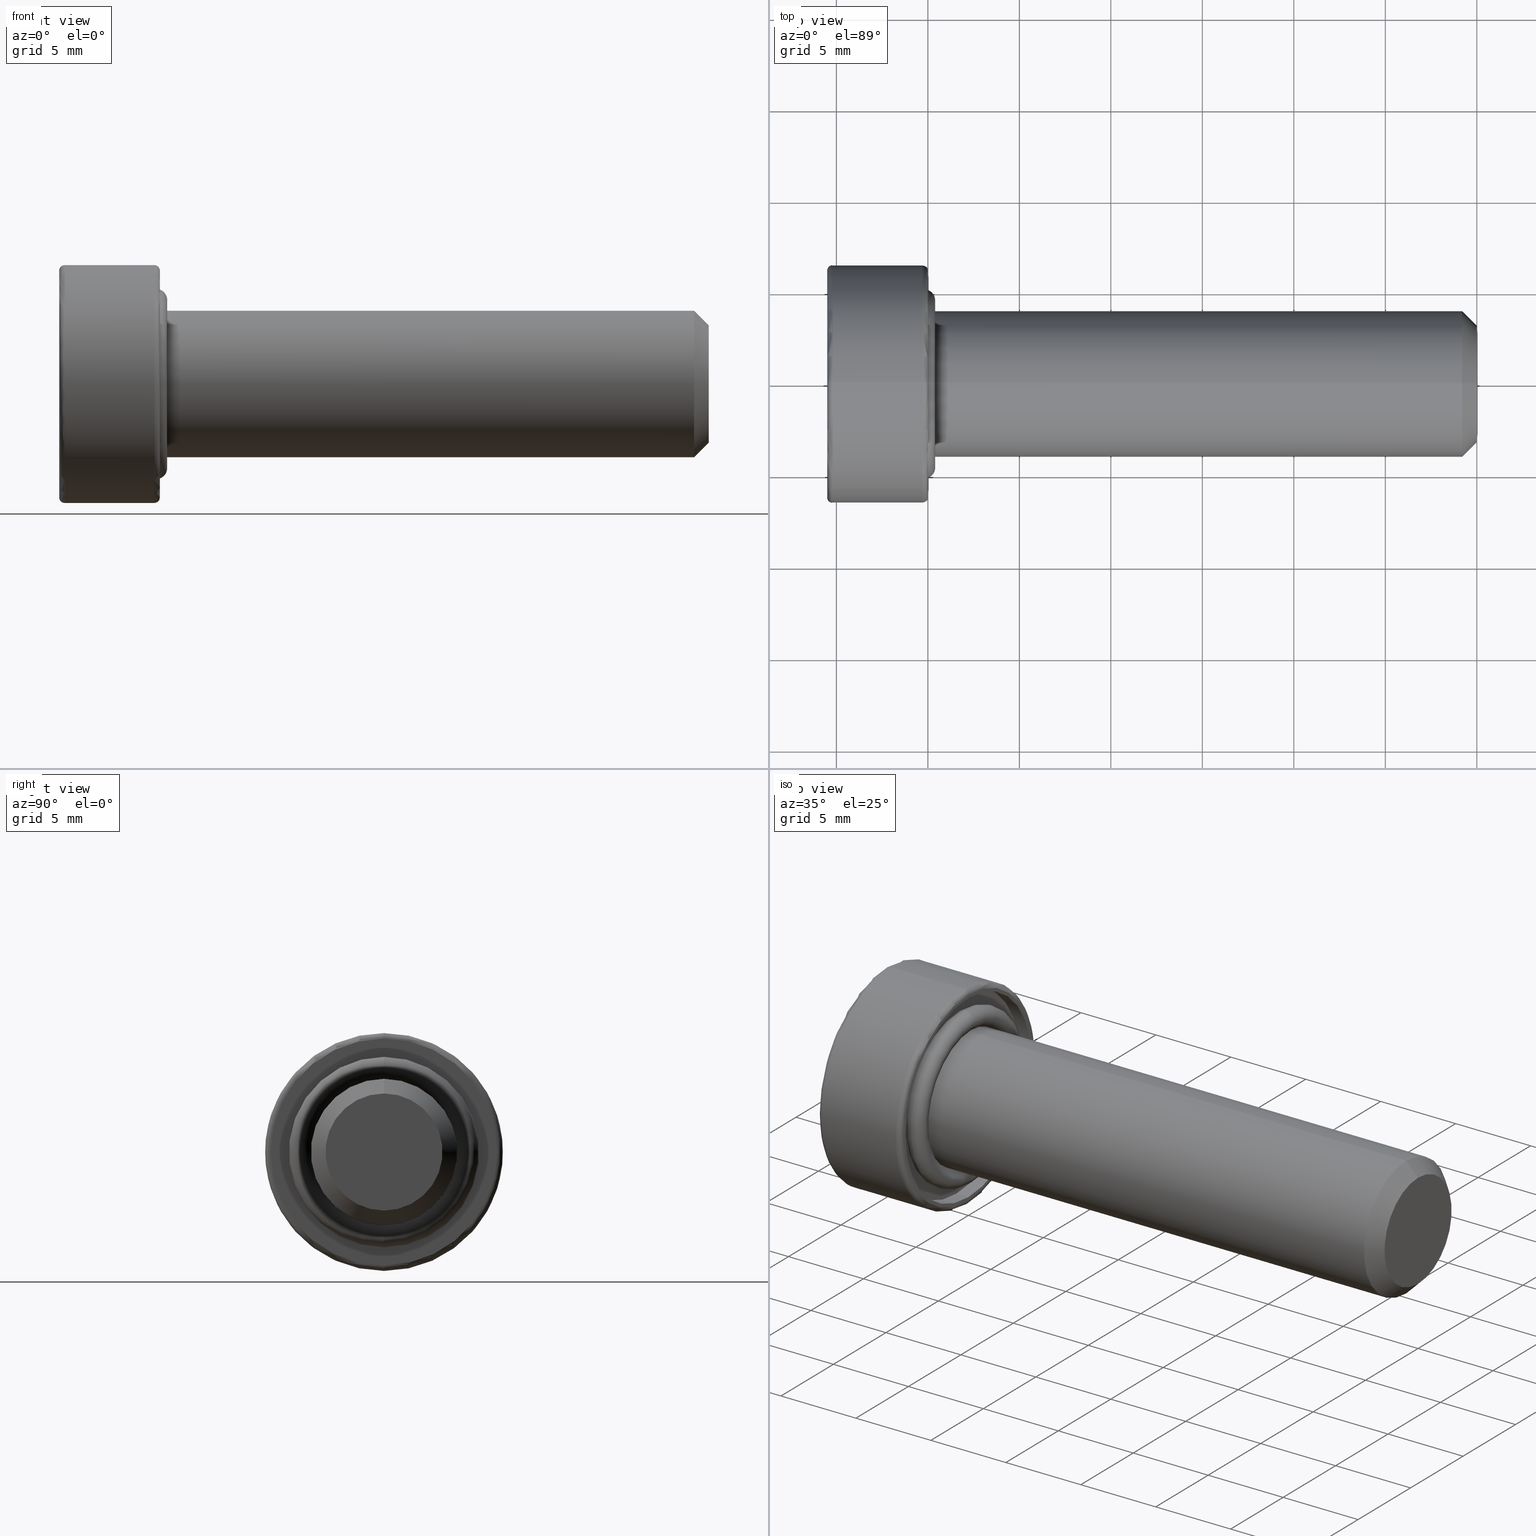
[diagram: canonical four-view strip — front | top / right | iso, engineering-drawing reading convention]
A machine part, canonical four-view strip (front | top / right | iso — engineering-drawing reading convention). The complete STEP part file that produces these views, byte-faithful:
ISO-10303-21;
HEADER;
FILE_DESCRIPTION (( 'STEP AP214' ),
    '1' );
FILE_NAME ('TL_418_M8_30.STEP',
    '2016-01-25T00:31:14',
    ( '' ),
    ( '' ),
    'SwSTEP 2.0',
    'SolidWorks 2015',
    '' );
FILE_SCHEMA (( 'AUTOMOTIVE_DESIGN' ));
ENDSEC;

DATA;
#1 = CARTESIAN_POINT ( 'NONE',  ( 0.0000000000000000000, 7.776507174585691200E-016, 6.199999999999999300 ) ) ;
#2 = ORIENTED_EDGE ( 'NONE', *, *, #412, .T. ) ;
#3 = ORIENTED_EDGE ( 'NONE', *, *, #284, .T. ) ;
#4 = DIRECTION ( 'NONE',  ( 0.0000000000000000000, 0.0000000000000000000, -1.000000000000000000 ) ) ;
#5 = CARTESIAN_POINT ( 'NONE',  ( -0.1999999999999999800, 5.633375276077824100E-016, 4.599999999999999600 ) ) ;
#6 = LINE ( 'NONE', #757, #656 ) ;
#7 = CYLINDRICAL_SURFACE ( 'NONE', #794, 6.499999999999999100 ) ;
#8 = EDGE_CURVE ( 'NONE', #211, #224, #171, .T. ) ;
#9 = DIRECTION ( 'NONE',  ( 0.0000000000000000000, 0.0000000000000000000, -1.000000000000000000 ) ) ;
#10 = DIRECTION ( 'NONE',  ( 0.0000000000000000000, 0.0000000000000000000, -1.000000000000000000 ) ) ;
#11 = ORIENTED_EDGE ( 'NONE', *, *, #469, .T. ) ;
#12 = CIRCLE ( 'NONE', #425, 4.000000000000000000 ) ;
#13 = DIRECTION ( 'NONE',  ( -1.000000000000000000, -0.0000000000000000000, -0.0000000000000000000 ) ) ;
#14 = CIRCLE ( 'NONE', #543, 3.199999999999998000 ) ;
#15 = DIRECTION ( 'NONE',  ( 1.000000000000000000, 0.0000000000000000000, 0.0000000000000000000 ) ) ;
#16 = ORIENTED_EDGE ( 'NONE', *, *, #770, .T. ) ;
#17 = VERTEX_POINT ( 'NONE', #584 ) ;
#18 = EDGE_CURVE ( 'NONE', #40, #709, #90, .T. ) ;
#19 =( NAMED_UNIT ( * ) SI_UNIT ( $, .STERADIAN. ) SOLID_ANGLE_UNIT ( ) );
#20 = DIRECTION ( 'NONE',  ( -1.000000000000000000, -0.0000000000000000000, -0.0000000000000000000 ) ) ;
#21 = CIRCLE ( 'NONE', #448, 0.2999999999999999300 ) ;
#22 = ADVANCED_FACE ( 'NONE', ( #407 ), #247, .T. ) ;
#23 = ORIENTED_EDGE ( 'NONE', *, *, #220, .T. ) ;
#24 = AXIS2_PLACEMENT_3D ( 'NONE', #590, #722, #404 ) ;
#25 = MECHANICAL_DESIGN_GEOMETRIC_PRESENTATION_REPRESENTATION (  '', ( #753 ), #77 ) ;
#26 = AXIS2_PLACEMENT_3D ( 'NONE', #377, #282, #163 ) ;
#27 = ORIENTED_EDGE ( 'NONE', *, *, #800, .T. ) ;
#28 = DIRECTION ( 'NONE',  ( 0.0000000000000000000, 0.0000000000000000000, 1.000000000000000000 ) ) ;
#29 = ORIENTED_EDGE ( 'NONE', *, *, #520, .T. ) ;
#30 = CIRCLE ( 'NONE', #730, 4.000000000000000000 ) ;
#31 = EDGE_CURVE ( 'NONE', #40, #711, #399, .T. ) ;
#32 = CARTESIAN_POINT ( 'NONE',  ( 30.00000000000000000, 0.0000000000000000000, 0.0000000000000000000 ) ) ;
#33 = FILL_AREA_STYLE_COLOUR ( '', #157 ) ;
#34 = CIRCLE ( 'NONE', #432, 6.499999999999999100 ) ;
#35 = CIRCLE ( 'NONE', #755, 0.5999999999999998700 ) ;
#36 = SURFACE_STYLE_USAGE ( .BOTH. , #176 ) ;
#37 = CARTESIAN_POINT ( 'NONE',  ( 30.00000000000000000, 0.0000000000000000000, 0.0000000000000000000 ) ) ;
#38 =( LENGTH_UNIT ( ) NAMED_UNIT ( * ) SI_UNIT ( .MILLI., .METRE. ) );
#39 = FACE_OUTER_BOUND ( 'NONE', #474, .T. ) ;
#40 = VERTEX_POINT ( 'NONE', #231 ) ;
#41 = PRODUCT_DEFINITION_CONTEXT ( 'detailed design', #403, 'design' ) ;
#42 =( NAMED_UNIT ( * ) PLANE_ANGLE_UNIT ( ) SI_UNIT ( $, .RADIAN. ) );
#43 = EDGE_CURVE ( 'NONE', #256, #718, #80, .T. ) ;
#44 = AXIS2_PLACEMENT_3D ( 'NONE', #458, #88, #518 ) ;
#45 = ORIENTED_EDGE ( 'NONE', *, *, #18, .F. ) ;
#46 = FACE_OUTER_BOUND ( 'NONE', #536, .T. ) ;
#47 = VECTOR ( 'NONE', #586, 1000.000000000000000 ) ;
#48 = CARTESIAN_POINT ( 'NONE',  ( 0.0000000000000000000, 0.0000000000000000000, 0.0000000000000000000 ) ) ;
#49 = VECTOR ( 'NONE', #491, 1000.000000000000000 ) ;
#50 = FACE_OUTER_BOUND ( 'NONE', #266, .T. ) ;
#51 = DIRECTION ( 'NONE',  ( -0.0000000000000000000, 0.5000000000000004400, 0.8660254037844382600 ) ) ;
#52 = AXIS2_PLACEMENT_3D ( 'NONE', #392, #249, #273 ) ;
#53 = ADVANCED_FACE ( 'NONE', ( #580 ), #684, .T. ) ;
#54 = CIRCLE ( 'NONE', #393, 0.5999999999999998700 ) ;
#55 = CIRCLE ( 'NONE', #545, 6.000000000000000900 ) ;
#56 = PLANE ( 'NONE',  #101 ) ;
#57 = DIRECTION ( 'NONE',  ( 0.0000000000000000000, 1.224646799147353200E-016, 1.000000000000000000 ) ) ;
#58 = ORIENTED_EDGE ( 'NONE', *, *, #469, .F. ) ;
#59 = EDGE_LOOP ( 'NONE', ( #762, #788, #696, #3 ) ) ;
#60 = EDGE_LOOP ( 'NONE', ( #443, #780, #370, #581 ) ) ;
#61 = EDGE_CURVE ( 'NONE', #803, #601, #14, .T. ) ;
#62 = FACE_OUTER_BOUND ( 'NONE', #778, .T. ) ;
#63 = ORIENTED_EDGE ( 'NONE', *, *, #291, .F. ) ;
#64 = CIRCLE ( 'NONE', #521, 0.2999999999999999300 ) ;
#65 = EDGE_LOOP ( 'NONE', ( #236, #465 ) ) ;
#66 = CARTESIAN_POINT ( 'NONE',  ( 0.0000000000000000000, 0.0000000000000000000, 0.0000000000000000000 ) ) ;
#67 = CARTESIAN_POINT ( 'NONE',  ( 0.0000000000000000000, 0.0000000000000000000, 0.0000000000000000000 ) ) ;
#68 = ADVANCED_FACE ( 'NONE', ( #765 ), #539, .T. ) ;
#69 = FILL_AREA_STYLE_COLOUR ( '', #731 ) ;
#70 = DIRECTION ( 'NONE',  ( 1.000000000000000000, -0.0000000000000000000, 0.0000000000000000000 ) ) ;
#71 =( NAMED_UNIT ( * ) SI_UNIT ( $, .STERADIAN. ) SOLID_ANGLE_UNIT ( ) );
#72 = ADVANCED_FACE ( 'NONE', ( #774, #569 ), #417, .T. ) ;
#73 = ORIENTED_EDGE ( 'NONE', *, *, #8, .F. ) ;
#74 = ADVANCED_FACE ( 'NONE', ( #726 ), #662, .F. ) ;
#75 = CARTESIAN_POINT ( 'NONE',  ( 30.00000000000000000, 0.0000000000000000000, 0.0000000000000000000 ) ) ;
#76 = ADVANCED_FACE ( 'NONE', ( #645 ), #324, .T. ) ;
#77 =( GEOMETRIC_REPRESENTATION_CONTEXT ( 3 ) GLOBAL_UNCERTAINTY_ASSIGNED_CONTEXT ( ( #796 ) ) GLOBAL_UNIT_ASSIGNED_CONTEXT ( ( #99, #690, #71 ) ) REPRESENTATION_CONTEXT ( 'NONE', 'WORKASPACE' ) );
#78 = ORIENTED_EDGE ( 'NONE', *, *, #18, .T. ) ;
#79 = CARTESIAN_POINT ( 'NONE',  ( -0.2000000000000000700, 0.0000000000000000000, 0.0000000000000000000 ) ) ;
#80 = CIRCLE ( 'NONE', #423, 0.2999999999999999300 ) ;
#81 = CARTESIAN_POINT ( 'NONE',  ( -2.499999999999999600, 1.443375672974074100, 2.500000000000013300 ) ) ;
#82 = EDGE_CURVE ( 'NONE', #149, #17, #695, .T. ) ;
#83 = VECTOR ( 'NONE', #340, 1000.000000000000000 ) ;
#84 = ADVANCED_FACE ( 'NONE', ( #736 ), #294, .F. ) ;
#85 = DIRECTION ( 'NONE',  ( 0.0000000000000000000, 1.000000000000000000, -1.224646799147353200E-016 ) ) ;
#86 = ORIENTED_EDGE ( 'NONE', *, *, #291, .T. ) ;
#87 = CIRCLE ( 'NONE', #44, 6.199999999999999300 ) ;
#88 = DIRECTION ( 'NONE',  ( -1.000000000000000000, -0.0000000000000000000, -0.0000000000000000000 ) ) ;
#89 =( NAMED_UNIT ( * ) PLANE_ANGLE_UNIT ( ) SI_UNIT ( $, .RADIAN. ) );
#90 = CIRCLE ( 'NONE', #376, 6.499999999999999100 ) ;
#91 = VERTEX_POINT ( 'NONE', #413 ) ;
#92 = DIRECTION ( 'NONE',  ( 1.000000000000000000, -0.0000000000000000000, -0.0000000000000000000 ) ) ;
#93 = SURFACE_STYLE_USAGE ( .BOTH. , #687 ) ;
#94 = PRESENTATION_STYLE_ASSIGNMENT (( #36 ) ) ;
#95 = EDGE_CURVE ( 'NONE', #601, #803, #206, .T. ) ;
#96 = AXIS2_PLACEMENT_3D ( 'NONE', #630, #194, #761 ) ;
#97 = VERTEX_POINT ( 'NONE', #227 ) ;
#98 = ORIENTED_EDGE ( 'NONE', *, *, #31, .T. ) ;
#99 =( LENGTH_UNIT ( ) NAMED_UNIT ( * ) SI_UNIT ( .MILLI., .METRE. ) );
#100 = ADVANCED_FACE ( 'NONE', ( #127 ), #148, .T. ) ;
#101 = AXIS2_PLACEMENT_3D ( 'NONE', #125, #70, #614 ) ;
#102 = DIRECTION ( 'NONE',  ( 0.0000000000000000000, 0.0000000000000000000, -1.000000000000000000 ) ) ;
#103 = CONICAL_SURFACE ( 'NONE', #599, 3.199999999999998000, 0.7853981633974503900 ) ;
#104 = EDGE_CURVE ( 'NONE', #345, #486, #356, .T. ) ;
#105 = DIRECTION ( 'NONE',  ( 1.000000000000000000, -0.0000000000000000000, -0.0000000000000000000 ) ) ;
#106 = PRESENTATION_STYLE_ASSIGNMENT (( #93 ) ) ;
#107 = VECTOR ( 'NONE', #303, 1000.000000000000100 ) ;
#108 = DIRECTION ( 'NONE',  ( 0.0000000000000000000, 0.0000000000000000000, -1.000000000000000000 ) ) ;
#109 = EDGE_LOOP ( 'NONE', ( #508, #776, #490, #367 ) ) ;
#110 = EDGE_LOOP ( 'NONE', ( #63, #433 ) ) ;
#111 = DIRECTION ( 'NONE',  ( 1.000000000000000000, 0.0000000000000000000, 0.0000000000000000000 ) ) ;
#112 = LINE ( 'NONE', #387, #192 ) ;
#113 = VERTEX_POINT ( 'NONE', #279 ) ;
#114 = DIRECTION ( 'NONE',  ( 0.0000000000000000000, 1.224646799147353200E-016, 1.000000000000000000 ) ) ;
#115 = CARTESIAN_POINT ( 'NONE',  ( -0.1999999999999999800, 0.0000000000000000000, 0.0000000000000000000 ) ) ;
#116 = AXIS2_PLACEMENT_3D ( 'NONE', #686, #365, #738 ) ;
#117 =( NAMED_UNIT ( * ) SI_UNIT ( $, .STERADIAN. ) SOLID_ANGLE_UNIT ( ) );
#118 = CARTESIAN_POINT ( 'NONE',  ( -0.1999999999999999800, 0.0000000000000000000, -4.599999999999999600 ) ) ;
#119 = FACE_OUTER_BOUND ( 'NONE', #59, .T. ) ;
#120 = EDGE_CURVE ( 'NONE', #344, #113, #155, .T. ) ;
#121 = CARTESIAN_POINT ( 'NONE',  ( -2.499999999999999600, -1.443375672974071000, 2.500000000000013300 ) ) ;
#122 = ORIENTED_EDGE ( 'NONE', *, *, #82, .F. ) ;
#123 = ORIENTED_EDGE ( 'NONE', *, *, #719, .T. ) ;
#124 = DIRECTION ( 'NONE',  ( 1.000000000000000000, -0.0000000000000000000, -0.0000000000000000000 ) ) ;
#125 = CARTESIAN_POINT ( 'NONE',  ( -2.499999999999999600, 0.0000000000000000000, 0.0000000000000000000 ) ) ;
#126 = LINE ( 'NONE', #139, #335 ) ;
#127 = FACE_OUTER_BOUND ( 'NONE', #651, .T. ) ;
#128 = CARTESIAN_POINT ( 'NONE',  ( -0.8000000000000000400, 0.0000000000000000000, 0.0000000000000000000 ) ) ;
#129 = DIRECTION ( 'NONE',  ( 1.000000000000000000, 0.0000000000000000000, 0.0000000000000000000 ) ) ;
#130 = FACE_OUTER_BOUND ( 'NONE', #453, .T. ) ;
#131 = ADVANCED_FACE ( 'NONE', ( #184, #408 ), #606, .T. ) ;
#132 = EDGE_CURVE ( 'NONE', #441, #649, #112, .T. ) ;
#133 = VERTEX_POINT ( 'NONE', #1 ) ;
#134 = CARTESIAN_POINT ( 'NONE',  ( 0.0000000000000000000, 0.0000000000000000000, 0.0000000000000000000 ) ) ;
#135 = ORIENTED_EDGE ( 'NONE', *, *, #284, .F. ) ;
#136 = EDGE_LOOP ( 'NONE', ( #313, #450, #650, #676 ) ) ;
#137 = CARTESIAN_POINT ( 'NONE',  ( -5.500000000000000000, 0.0000000000000000000, 0.0000000000000000000 ) ) ;
#138 = ORIENTED_EDGE ( 'NONE', *, *, #8, .T. ) ;
#139 = CARTESIAN_POINT ( 'NONE',  ( -0.8000000000000000400, 7.347880794884120700E-016, 6.000000000000000900 ) ) ;
#140 = DIRECTION ( 'NONE',  ( 0.0000000000000000000, 0.0000000000000000000, -1.000000000000000000 ) ) ;
#141 = DIRECTION ( 'NONE',  ( 0.0000000000000000000, 0.0000000000000000000, 1.000000000000000000 ) ) ;
#142 = DIRECTION ( 'NONE',  ( 1.000000000000000000, 0.0000000000000000000, 0.0000000000000000000 ) ) ;
#143 = ORIENTED_EDGE ( 'NONE', *, *, #455, .T. ) ;
#144 = VERTEX_POINT ( 'NONE', #449 ) ;
#145 = DIRECTION ( 'NONE',  ( 0.0000000000000000000, 1.000000000000000000, -1.224646799147353200E-016 ) ) ;
#146 = AXIS2_PLACEMENT_3D ( 'NONE', #573, #637, #524 ) ;
#147 = DIRECTION ( 'NONE',  ( -1.000000000000000000, 0.0000000000000000000, 0.0000000000000000000 ) ) ;
#148 = TOROIDAL_SURFACE ( 'NONE', #438, 4.599999999999999600, 0.5999999999999999800 ) ;
#149 = VERTEX_POINT ( 'NONE', #81 ) ;
#150 = EDGE_CURVE ( 'NONE', #97, #40, #64, .T. ) ;
#151 = CARTESIAN_POINT ( 'NONE',  ( -0.2999999999999999300, 7.960204194457794500E-016, 6.499999999999999100 ) ) ;
#152 = LINE ( 'NONE', #725, #461 ) ;
#153 = PLANE ( 'NONE',  #379 ) ;
#154 = ADVANCED_FACE ( 'NONE', ( #39 ), #103, .T. ) ;
#155 = CIRCLE ( 'NONE', #401, 0.5999999999999998700 ) ;
#156 = ADVANCED_FACE ( 'NONE', ( #527 ), #212, .T. ) ;
#157 = COLOUR_RGB ( '',0.7921568627450980000, 0.8196078431372548800, 0.9333333333333333500 ) ;
#158 = AXIS2_PLACEMENT_3D ( 'NONE', #538, #808, #437 ) ;
#159 = ADVANCED_FACE ( 'NONE', ( #654 ), #790, .F. ) ;
#160 = EDGE_LOOP ( 'NONE', ( #283, #488, #670, #45 ) ) ;
#161 = VECTOR ( 'NONE', #394, 1000.000000000000000 ) ;
#162 = EDGE_CURVE ( 'NONE', #144, #366, #126, .T. ) ;
#163 = DIRECTION ( 'NONE',  ( 0.0000000000000000000, 0.0000000000000000000, -1.000000000000000000 ) ) ;
#164 = FACE_OUTER_BOUND ( 'NONE', #160, .T. ) ;
#165 = DIRECTION ( 'NONE',  ( -0.0000000000000000000, 1.000000000000000000, -0.0000000000000000000 ) ) ;
#166 = VECTOR ( 'NONE', #111, 1000.000000000000000 ) ;
#167 = DIRECTION ( 'NONE',  ( 1.000000000000000000, 0.0000000000000000000, 0.0000000000000000000 ) ) ;
#168 = ORIENTED_EDGE ( 'NONE', *, *, #617, .T. ) ;
#169 = DIRECTION ( 'NONE',  ( -0.0000000000000000000, 0.5000000000000004400, 0.8660254037844382600 ) ) ;
#170 = ORIENTED_EDGE ( 'NONE', *, *, #494, .F. ) ;
#171 = LINE ( 'NONE', #602, #49 ) ;
#172 = EDGE_CURVE ( 'NONE', #611, #149, #385, .T. ) ;
#173 = DIRECTION ( 'NONE',  ( 1.000000000000000000, 0.0000000000000000000, 0.0000000000000000000 ) ) ;
#174 = SHAPE_DEFINITION_REPRESENTATION ( #813, #290 ) ;
#175 = VECTOR ( 'NONE', #226, 1000.000000000000100 ) ;
#176 = SURFACE_SIDE_STYLE ('',( #562 ) ) ;
#177 = CARTESIAN_POINT ( 'NONE',  ( -2.499999999999999600, 2.886751345948146900, -8.673617379884035500E-016 ) ) ;
#178 = AXIS2_PLACEMENT_3D ( 'NONE', #134, #697, #773 ) ;
#179 = FACE_OUTER_BOUND ( 'NONE', #512, .T. ) ;
#180 = SHAPE_REPRESENTATION ( 'TL_418_M8_30', ( #319, #233 ), #280 ) ;
#181 = EDGE_CURVE ( 'NONE', #779, #91, #276, .T. ) ;
#182 = CARTESIAN_POINT ( 'NONE',  ( 30.00000000000000000, 0.0000000000000000000, 0.0000000000000000000 ) ) ;
#183 = ORIENTED_EDGE ( 'NONE', *, *, #132, .F. ) ;
#184 = FACE_OUTER_BOUND ( 'NONE', #65, .T. ) ;
#185 = ORIENTED_EDGE ( 'NONE', *, *, #162, .T. ) ;
#186 = DIRECTION ( 'NONE',  ( 0.0000000000000000000, 0.0000000000000000000, -1.000000000000000000 ) ) ;
#187 = LINE ( 'NONE', #783, #175 ) ;
#188 = DIRECTION ( 'NONE',  ( 1.000000000000000000, 0.0000000000000000000, 0.0000000000000000000 ) ) ;
#189 = CARTESIAN_POINT ( 'NONE',  ( -2.499999999999999600, 1.443375672974072300, -2.500000000000013300 ) ) ;
#190 = AXIS2_PLACEMENT_3D ( 'NONE', #67, #646, #251 ) ;
#191 = AXIS2_PLACEMENT_3D ( 'NONE', #665, #801, #663 ) ;
#192 = VECTOR ( 'NONE', #758, 1000.000000000000000 ) ;
#193 = ORIENTED_EDGE ( 'NONE', *, *, #95, .T. ) ;
#194 = DIRECTION ( 'NONE',  ( -0.0000000000000000000, 0.8660254037844387100, 0.5000000000000001100 ) ) ;
#195 = EDGE_CURVE ( 'NONE', #113, #463, #30, .T. ) ;
#196 =( REPRESENTATION_RELATIONSHIP ('NONE','NONE', #180, #290 ) REPRESENTATION_RELATIONSHIP_WITH_TRANSFORMATION ( #817 )SHAPE_REPRESENTATION_RELATIONSHIP( ) );
#197 = CIRCLE ( 'NONE', #347, 6.499999999999999100 ) ;
#198 = DIRECTION ( 'NONE',  ( -0.0000000000000000000, 1.000000000000000000, -0.0000000000000000000 ) ) ;
#199 = FACE_OUTER_BOUND ( 'NONE', #804, .T. ) ;
#200 = DIRECTION ( 'NONE',  ( 0.0000000000000000000, -0.5000000000000004400, -0.8660254037844382600 ) ) ;
#201 = ORIENTED_EDGE ( 'NONE', *, *, #597, .T. ) ;
#202 = LINE ( 'NONE', #704, #161 ) ;
#203 = CARTESIAN_POINT ( 'NONE',  ( -2.499999999999999600, -2.886751345948144600, 8.673617379884035500E-016 ) ) ;
#204 = DIRECTION ( 'NONE',  ( 0.0000000000000000000, -0.8660254037844388200, -0.4999999999999998300 ) ) ;
#205 = VERTEX_POINT ( 'NONE', #383 ) ;
#206 = CIRCLE ( 'NONE', #310, 3.199999999999998000 ) ;
#207 = DIRECTION ( 'NONE',  ( 1.000000000000000000, 0.0000000000000000000, 0.0000000000000000000 ) ) ;
#208 = EDGE_CURVE ( 'NONE', #718, #133, #372, .T. ) ;
#209 = AXIS2_PLACEMENT_3D ( 'NONE', #571, #579, #200 ) ;
#210 = ADVANCED_FACE ( 'NONE', ( #50 ), #627, .F. ) ;
#211 = VERTEX_POINT ( 'NONE', #756 ) ;
#212 = CONICAL_SURFACE ( 'NONE', #643, 3.199999999999998000, 0.7853981633974503900 ) ;
#213 = ORIENTED_EDGE ( 'NONE', *, *, #400, .T. ) ;
#214 = UNCERTAINTY_MEASURE_WITH_UNIT (LENGTH_MEASURE( 1.000000000000000100E-005 ), #814, 'distance_accuracy_value', 'NONE');
#215 = LINE ( 'NONE', #177, #699 ) ;
#216 = AXIS2_PLACEMENT_3D ( 'NONE', #631, #498, #456 ) ;
#217 = CARTESIAN_POINT ( 'NONE',  ( 0.0000000000000000000, 0.0000000000000000000, -6.000000000000000900 ) ) ;
#218 = ORIENTED_EDGE ( 'NONE', *, *, #305, .F. ) ;
#219 = FILL_AREA_STYLE ('',( #69 ) ) ;
#220 = EDGE_CURVE ( 'NONE', #97, #243, #87, .T. ) ;
#221 = DIRECTION ( 'NONE',  ( 0.0000000000000000000, 0.0000000000000000000, -1.000000000000000000 ) ) ;
#222 = ORIENTED_EDGE ( 'NONE', *, *, #240, .F. ) ;
#223 = UNCERTAINTY_MEASURE_WITH_UNIT (LENGTH_MEASURE( 1.000000000000000100E-005 ), #38, 'distance_accuracy_value', 'NONE');
#224 = VERTEX_POINT ( 'NONE', #327 ) ;
#225 = DIRECTION ( 'NONE',  ( 1.000000000000000000, 0.0000000000000000000, 0.0000000000000000000 ) ) ;
#226 = DIRECTION ( 'NONE',  ( -0.0000000000000000000, -0.5000000000000007800, -0.8660254037844381500 ) ) ;
#227 = CARTESIAN_POINT ( 'NONE',  ( -5.500000000000000000, 7.776507174585691200E-016, 6.199999999999999300 ) ) ;
#228 = ADVANCED_FACE ( 'NONE', ( #46 ), #764, .F. ) ;
#229 = ORIENTED_EDGE ( 'NONE', *, *, #674, .F. ) ;
#230 = ORIENTED_EDGE ( 'NONE', *, *, #95, .F. ) ;
#231 = CARTESIAN_POINT ( 'NONE',  ( -5.200000000000000200, 7.960204194457794500E-016, 6.499999999999999100 ) ) ;
#232 = VECTOR ( 'NONE', #261, 1000.000000000000100 ) ;
#233 = AXIS2_PLACEMENT_3D ( 'NONE', #560, #141, #129 ) ;
#234 = STYLED_ITEM ( 'NONE', ( #94 ), #509 ) ;
#235 = ORIENTED_EDGE ( 'NONE', *, *, #577, .T. ) ;
#236 = ORIENTED_EDGE ( 'NONE', *, *, #208, .T. ) ;
#237 = DIRECTION ( 'NONE',  ( -0.7071067811865459100, 8.659560562354950100E-017, -0.7071067811865490200 ) ) ;
#238 = DIRECTION ( 'NONE',  ( 0.0000000000000000000, 0.0000000000000000000, -1.000000000000000000 ) ) ;
#239 = CIRCLE ( 'NONE', #146, 4.000000000000000000 ) ;
#240 = EDGE_CURVE ( 'NONE', #601, #441, #202, .T. ) ;
#241 =( NAMED_UNIT ( * ) SI_UNIT ( $, .STERADIAN. ) SOLID_ANGLE_UNIT ( ) );
#242 = ADVANCED_FACE ( 'NONE', ( #62 ), #398, .F. ) ;
#243 = VERTEX_POINT ( 'NONE', #639 ) ;
#244 = CARTESIAN_POINT ( 'NONE',  ( -5.500000000000000000, 0.0000000000000000000, 0.0000000000000000000 ) ) ;
#245 = ADVANCED_FACE ( 'NONE', ( #751 ), #153, .F. ) ;
#246 = EDGE_LOOP ( 'NONE', ( #660, #354, #278, #772 ) ) ;
#247 = TOROIDAL_SURFACE ( 'NONE', #466, 6.199999999999999300, 0.2999999999999999900 ) ;
#248 = ORIENTED_EDGE ( 'NONE', *, *, #391, .T. ) ;
#249 = DIRECTION ( 'NONE',  ( 1.000000000000000000, 0.0000000000000000000, 0.0000000000000000000 ) ) ;
#250 = DIRECTION ( 'NONE',  ( 1.000000000000000000, 0.0000000000000000000, 0.0000000000000000000 ) ) ;
#251 = DIRECTION ( 'NONE',  ( 1.000000000000000000, 0.0000000000000000000, 0.0000000000000000000 ) ) ;
#252 = VECTOR ( 'NONE', #51, 1000.000000000000200 ) ;
#253 = ADVANCED_FACE ( 'NONE', ( #119 ), #339, .F. ) ;
#254 = EDGE_CURVE ( 'NONE', #463, #113, #12, .T. ) ;
#255 = DIRECTION ( 'NONE',  ( 0.0000000000000000000, 0.0000000000000000000, 1.000000000000000000 ) ) ;
#256 = VERTEX_POINT ( 'NONE', #797 ) ;
#257 = DIRECTION ( 'NONE',  ( -1.000000000000000000, -0.0000000000000000000, -0.0000000000000000000 ) ) ;
#258 = APPLICATION_PROTOCOL_DEFINITION ( 'draft international standard', 'automotive_design', 1998, #277 ) ;
#259 = ADVANCED_FACE ( 'NONE', ( #435 ), #745, .T. ) ;
#260 = ORIENTED_EDGE ( 'NONE', *, *, #520, .F. ) ;
#261 = DIRECTION ( 'NONE',  ( -0.0000000000000000000, -0.5000000000000007800, -0.8660254037844381500 ) ) ;
#262 = DIRECTION ( 'NONE',  ( 0.0000000000000000000, 0.0000000000000000000, 1.000000000000000000 ) ) ;
#263 = CARTESIAN_POINT ( 'NONE',  ( -5.200000000000000200, 0.0000000000000000000, 0.0000000000000000000 ) ) ;
#264 = AXIS2_PLACEMENT_3D ( 'NONE', #747, #677, #9 ) ;
#265 = CARTESIAN_POINT ( 'NONE',  ( -2.499999999999999600, 1.443375672974074100, 2.500000000000013300 ) ) ;
#266 = EDGE_LOOP ( 'NONE', ( #16, #170, #332, #613 ) ) ;
#267 = CARTESIAN_POINT ( 'NONE',  ( -5.200000000000000200, 0.0000000000000000000, 0.0000000000000000000 ) ) ;
#268 = EDGE_CURVE ( 'NONE', #133, #718, #311, .T. ) ;
#269 = DIRECTION ( 'NONE',  ( 1.000000000000000000, 0.0000000000000000000, 0.0000000000000000000 ) ) ;
#270 = SURFACE_STYLE_FILL_AREA ( #809 ) ;
#271 = DIRECTION ( 'NONE',  ( 0.0000000000000000000, 0.0000000000000000000, -1.000000000000000000 ) ) ;
#272 = LINE ( 'NONE', #374, #419 ) ;
#273 = DIRECTION ( 'NONE',  ( 0.0000000000000000000, 0.0000000000000000000, -1.000000000000000000 ) ) ;
#274 = CARTESIAN_POINT ( 'NONE',  ( -0.8000000000000000400, 0.0000000000000000000, -6.000000000000000900 ) ) ;
#275 = ORIENTED_EDGE ( 'NONE', *, *, #655, .F. ) ;
#276 = LINE ( 'NONE', #189, #232 ) ;
#277 = APPLICATION_CONTEXT ( 'automotive_design' ) ;
#278 = ORIENTED_EDGE ( 'NONE', *, *, #208, .F. ) ;
#279 = CARTESIAN_POINT ( 'NONE',  ( -0.2000000000000000700, 0.0000000000000000000, -4.000000000000000000 ) ) ;
#280 =( GEOMETRIC_REPRESENTATION_CONTEXT ( 3 ) GLOBAL_UNCERTAINTY_ASSIGNED_CONTEXT ( ( #314 ) ) GLOBAL_UNIT_ASSIGNED_CONTEXT ( ( #440, #388, #19 ) ) REPRESENTATION_CONTEXT ( 'NONE', 'WORKASPACE' ) );
#281 = AXIS2_PLACEMENT_3D ( 'NONE', #669, #547, #618 ) ;
#282 = DIRECTION ( 'NONE',  ( 1.000000000000000000, -0.0000000000000000000, -0.0000000000000000000 ) ) ;
#283 = ORIENTED_EDGE ( 'NONE', *, *, #150, .F. ) ;
#284 = EDGE_CURVE ( 'NONE', #486, #366, #55, .T. ) ;
#285 = EDGE_LOOP ( 'NONE', ( #201, #168 ) ) ;
#286 = CARTESIAN_POINT ( 'NONE',  ( -0.8000000000000000400, 0.0000000000000000000, 0.0000000000000000000 ) ) ;
#287 = LINE ( 'NONE', #422, #769 ) ;
#288 = ORIENTED_EDGE ( 'NONE', *, *, #577, .F. ) ;
#289 = ORIENTED_EDGE ( 'NONE', *, *, #480, .F. ) ;
#290 = SHAPE_REPRESENTATION ( 'screw', ( #713 ), #625 ) ;
#291 = EDGE_CURVE ( 'NONE', #649, #224, #364, .T. ) ;
#292 = AXIS2_PLACEMENT_3D ( 'NONE', #330, #10, #460 ) ;
#293 = CARTESIAN_POINT ( 'NONE',  ( -0.8000000000000000400, 0.0000000000000000000, -6.000000000000000900 ) ) ;
#294 = PLANE ( 'NONE',  #353 ) ;
#295 = CARTESIAN_POINT ( 'NONE',  ( 30.00000000000000000, 3.918869757271527000E-016, -3.199999999999998000 ) ) ;
#296 = PRESENTATION_STYLE_ASSIGNMENT (( #483 ) ) ;
#297 = CARTESIAN_POINT ( 'NONE',  ( -0.1999999999999999800, 5.633375276077824100E-016, 4.599999999999999600 ) ) ;
#298 = ORIENTED_EDGE ( 'NONE', *, *, #685, .T. ) ;
#299 = ORIENTED_EDGE ( 'NONE', *, *, #405, .F. ) ;
#300 = CARTESIAN_POINT ( 'NONE',  ( -5.500000000000000000, -1.443375672974072800, -2.500000000000013300 ) ) ;
#301 = AXIS2_PLACEMENT_3D ( 'NONE', #244, #320, #186 ) ;
#302 = ORIENTED_EDGE ( 'NONE', *, *, #617, .F. ) ;
#303 = DIRECTION ( 'NONE',  ( -0.0000000000000000000, -0.4999999999999997200, 0.8660254037844387100 ) ) ;
#304 = ADVANCED_FACE ( 'NONE', ( #199 ), #658, .T. ) ;
#305 = EDGE_CURVE ( 'NONE', #585, #632, #679, .T. ) ;
#306 = LINE ( 'NONE', #721, #166 ) ;
#307 = ADVANCED_FACE ( 'NONE', ( #532 ), #7, .T. ) ;
#308 = EDGE_CURVE ( 'NONE', #733, #535, #517, .T. ) ;
#309 = CARTESIAN_POINT ( 'NONE',  ( -0.1999999999999999800, 0.0000000000000000000, -5.200000000000000200 ) ) ;
#310 = AXIS2_PLACEMENT_3D ( 'NONE', #37, #708, #789 ) ;
#311 = CIRCLE ( 'NONE', #338, 6.199999999999999300 ) ;
#312 = PRODUCT_CONTEXT ( 'NONE', #513, 'mechanical' ) ;
#313 = ORIENTED_EDGE ( 'NONE', *, *, #337, .F. ) ;
#314 = UNCERTAINTY_MEASURE_WITH_UNIT (LENGTH_MEASURE( 1.000000000000000100E-005 ), #440, 'distance_accuracy_value', 'NONE');
#315 = ORIENTED_EDGE ( 'NONE', *, *, #220, .F. ) ;
#316 =( LENGTH_UNIT ( ) NAMED_UNIT ( * ) SI_UNIT ( .MILLI., .METRE. ) );
#317 = CONTEXT_DEPENDENT_SHAPE_REPRESENTATION ( #196, #468 ) ;
#318 = CIRCLE ( 'NONE', #574, 6.000000000000000900 ) ;
#319 = AXIS2_PLACEMENT_3D ( 'NONE', #634, #626, #553 ) ;
#320 = DIRECTION ( 'NONE',  ( -1.000000000000000000, -0.0000000000000000000, -0.0000000000000000000 ) ) ;
#321 = PRESENTATION_LAYER_ASSIGNMENT (  '', '', ( #234 ) ) ;
#322 = EDGE_LOOP ( 'NONE', ( #737, #29, #406, #222 ) ) ;
#323 = CARTESIAN_POINT ( 'NONE',  ( 0.0000000000000000000, 0.0000000000000000000, 0.0000000000000000000 ) ) ;
#324 = TOROIDAL_SURFACE ( 'NONE', #24, 4.599999999999999600, 0.5999999999999999800 ) ;
#325 = EDGE_CURVE ( 'NONE', #798, #463, #35, .T. ) ;
#326 = CARTESIAN_POINT ( 'NONE',  ( -0.1999999999999999800, 6.368163355566236400E-016, 5.200000000000000200 ) ) ;
#327 = CARTESIAN_POINT ( 'NONE',  ( -0.8000000000000000400, 4.898587196589412800E-016, -4.000000000000000000 ) ) ;
#328 = VECTOR ( 'NONE', #565, 1000.000000000000100 ) ;
#329 = CIRCLE ( 'NONE', #26, 5.200000000000000200 ) ;
#330 = CARTESIAN_POINT ( 'NONE',  ( -2.499999999999999600, -1.443375672974072800, -2.500000000000013300 ) ) ;
#331 = CARTESIAN_POINT ( 'NONE',  ( -5.500000000000000000, 1.443375672974072300, -2.500000000000013300 ) ) ;
#332 = ORIENTED_EDGE ( 'NONE', *, *, #685, .F. ) ;
#333 = DIRECTION ( 'NONE',  ( 1.000000000000000000, -0.0000000000000000000, -0.0000000000000000000 ) ) ;
#334 = CARTESIAN_POINT ( 'NONE',  ( -5.500000000000000000, 2.886751345948146900, -8.673617379884035500E-016 ) ) ;
#335 = VECTOR ( 'NONE', #566, 1000.000000000000000 ) ;
#336 = ORIENTED_EDGE ( 'NONE', *, *, #655, .T. ) ;
#337 = EDGE_CURVE ( 'NONE', #711, #133, #657, .T. ) ;
#338 = AXIS2_PLACEMENT_3D ( 'NONE', #66, #418, #426 ) ;
#339 = CYLINDRICAL_SURFACE ( 'NONE', #467, 6.000000000000000900 ) ;
#340 = DIRECTION ( 'NONE',  ( -1.000000000000000000, -0.0000000000000000000, -0.0000000000000000000 ) ) ;
#341 = CARTESIAN_POINT ( 'NONE',  ( -0.2999999999999999300, 0.0000000000000000000, -6.199999999999999300 ) ) ;
#342 = FACE_OUTER_BOUND ( 'NONE', #246, .T. ) ;
#343 = CARTESIAN_POINT ( 'NONE',  ( -5.500000000000000000, 7.960204194457794500E-016, 6.499999999999999100 ) ) ;
#344 = VERTEX_POINT ( 'NONE', #309 ) ;
#345 = VERTEX_POINT ( 'NONE', #293 ) ;
#346 = DIRECTION ( 'NONE',  ( -1.000000000000000000, -0.0000000000000000000, -0.0000000000000000000 ) ) ;
#347 = AXIS2_PLACEMENT_3D ( 'NONE', #519, #621, #703 ) ;
#348 = VECTOR ( 'NONE', #510, 1000.000000000000200 ) ;
#349 = VECTOR ( 'NONE', #540, 1000.000000000000000 ) ;
#350 = EDGE_CURVE ( 'NONE', #91, #750, #806, .T. ) ;
#351 = ORIENTED_EDGE ( 'NONE', *, *, #770, .F. ) ;
#352 = DIRECTION ( 'NONE',  ( 0.0000000000000000000, 0.0000000000000000000, -1.000000000000000000 ) ) ;
#353 = AXIS2_PLACEMENT_3D ( 'NONE', #544, #732, #648 ) ;
#354 = ORIENTED_EDGE ( 'NONE', *, *, #337, .T. ) ;
#355 = CARTESIAN_POINT ( 'NONE',  ( -5.500000000000000000, -2.886751345948144600, 8.673617379884035500E-016 ) ) ;
#356 = LINE ( 'NONE', #274, #47 ) ;
#357 = DIRECTION ( 'NONE',  ( 0.0000000000000000000, 0.0000000000000000000, -1.000000000000000000 ) ) ;
#358 = ORIENTED_EDGE ( 'NONE', *, *, #405, .T. ) ;
#359 = DIRECTION ( 'NONE',  ( 1.000000000000000000, 0.0000000000000000000, 0.0000000000000000000 ) ) ;
#360 = PRODUCT_DEFINITION ( 'UNKNOWN', '', #572, #815 ) ;
#361 = MECHANICAL_DESIGN_GEOMETRIC_PRESENTATION_REPRESENTATION (  '', ( #234 ), #409 ) ;
#362 = EDGE_CURVE ( 'NONE', #798, #344, #329, .T. ) ;
#363 = LINE ( 'NONE', #334, #348 ) ;
#364 = CIRCLE ( 'NONE', #588, 4.000000000000000000 ) ;
#365 = DIRECTION ( 'NONE',  ( 1.000000000000000000, -0.0000000000000000000, -0.0000000000000000000 ) ) ;
#366 = VERTEX_POINT ( 'NONE', #728 ) ;
#367 = ORIENTED_EDGE ( 'NONE', *, *, #494, .T. ) ;
#368 = ORIENTED_EDGE ( 'NONE', *, *, #240, .T. ) ;
#369 = ORIENTED_EDGE ( 'NONE', *, *, #308, .T. ) ;
#370 = ORIENTED_EDGE ( 'NONE', *, *, #120, .T. ) ;
#371 = ORIENTED_EDGE ( 'NONE', *, *, #325, .T. ) ;
#372 = CIRCLE ( 'NONE', #688, 6.199999999999999300 ) ;
#373 = ORIENTED_EDGE ( 'NONE', *, *, #436, .F. ) ;
#374 = CARTESIAN_POINT ( 'NONE',  ( -2.499999999999999600, 2.886751345948146900, -8.673617379884035500E-016 ) ) ;
#375 = APPLICATION_PROTOCOL_DEFINITION ( 'draft international standard', 'automotive_design', 1998, #513 ) ;
#376 = AXIS2_PLACEMENT_3D ( 'NONE', #659, #672, #717 ) ;
#377 = CARTESIAN_POINT ( 'NONE',  ( -0.1999999999999999800, 0.0000000000000000000, 0.0000000000000000000 ) ) ;
#378 = CARTESIAN_POINT ( 'NONE',  ( 29.19999999999999900, 0.0000000000000000000, 0.0000000000000000000 ) ) ;
#379 = AXIS2_PLACEMENT_3D ( 'NONE', #767, #204, #641 ) ;
#380 = DIRECTION ( 'NONE',  ( 0.0000000000000000000, 0.0000000000000000000, -1.000000000000000000 ) ) ;
#381 = ORIENTED_EDGE ( 'NONE', *, *, #172, .T. ) ;
#382 = CARTESIAN_POINT ( 'NONE',  ( -5.500000000000000000, -1.443375672974071000, 2.500000000000013300 ) ) ;
#383 = CARTESIAN_POINT ( 'NONE',  ( -5.500000000000000000, 2.886751345948146900, -8.673617379884035500E-016 ) ) ;
#384 = ADVANCED_FACE ( 'NONE', ( #479, #179 ), #734, .F. ) ;
#385 = LINE ( 'NONE', #265, #715 ) ;
#386 = ORIENTED_EDGE ( 'NONE', *, *, #674, .T. ) ;
#387 = CARTESIAN_POINT ( 'NONE',  ( 30.00000000000000000, 0.0000000000000000000, 4.000000000000000000 ) ) ;
#388 =( NAMED_UNIT ( * ) PLANE_ANGLE_UNIT ( ) SI_UNIT ( $, .RADIAN. ) );
#389 = CIRCLE ( 'NONE', #264, 4.000000000000000000 ) ;
#390 = CARTESIAN_POINT ( 'NONE',  ( 30.00000000000000000, 0.0000000000000000000, 0.0000000000000000000 ) ) ;
#391 = EDGE_CURVE ( 'NONE', #709, #256, #306, .T. ) ;
#392 = CARTESIAN_POINT ( 'NONE',  ( -0.8000000000000000400, 0.0000000000000000000, 0.0000000000000000000 ) ) ;
#393 = AXIS2_PLACEMENT_3D ( 'NONE', #5, #145, #57 ) ;
#394 = DIRECTION ( 'NONE',  ( -0.7071067811865459100, 0.0000000000000000000, 0.7071067811865490200 ) ) ;
#395 = EDGE_LOOP ( 'NONE', ( #302, #185, #336, #546 ) ) ;
#396 = APPLICATION_PROTOCOL_DEFINITION ( 'draft international standard', 'automotive_design', 1998, #403 ) ;
#397 = ORIENTED_EDGE ( 'NONE', *, *, #120, .F. ) ;
#398 = PLANE ( 'NONE',  #292 ) ;
#399 = LINE ( 'NONE', #343, #635 ) ;
#400 = EDGE_CURVE ( 'NONE', #344, #798, #496, .T. ) ;
#401 = AXIS2_PLACEMENT_3D ( 'NONE', #118, #589, #576 ) ;
#402 = ORIENTED_EDGE ( 'NONE', *, *, #61, .T. ) ;
#403 = APPLICATION_CONTEXT ( 'automotive_design' ) ;
#404 = DIRECTION ( 'NONE',  ( 0.0000000000000000000, 0.0000000000000000000, -1.000000000000000000 ) ) ;
#405 = EDGE_CURVE ( 'NONE', #750, #535, #152, .T. ) ;
#406 = ORIENTED_EDGE ( 'NONE', *, *, #811, .F. ) ;
#407 = FACE_OUTER_BOUND ( 'NONE', #136, .T. ) ;
#408 = FACE_BOUND ( 'NONE', #644, .T. ) ;
#409 =( GEOMETRIC_REPRESENTATION_CONTEXT ( 3 ) GLOBAL_UNCERTAINTY_ASSIGNED_CONTEXT ( ( #223 ) ) GLOBAL_UNIT_ASSIGNED_CONTEXT ( ( #38, #42, #117 ) ) REPRESENTATION_CONTEXT ( 'NONE', 'WORKASPACE' ) );
#410 = DIRECTION ( 'NONE',  ( 0.0000000000000000000, 0.5000000000000006700, 0.8660254037844381500 ) ) ;
#411 = CIRCLE ( 'NONE', #52, 6.000000000000000900 ) ;
#412 = EDGE_CURVE ( 'NONE', #256, #711, #784, .T. ) ;
#413 = CARTESIAN_POINT ( 'NONE',  ( -2.499999999999999600, 1.443375672974072300, -2.500000000000013300 ) ) ;
#414 = ORIENTED_EDGE ( 'NONE', *, *, #558, .F. ) ;
#415 = ORIENTED_EDGE ( 'NONE', *, *, #744, .F. ) ;
#416 = DIRECTION ( 'NONE',  ( 0.0000000000000000000, 0.0000000000000000000, -1.000000000000000000 ) ) ;
#417 = PLANE ( 'NONE',  #712 ) ;
#418 = DIRECTION ( 'NONE',  ( 1.000000000000000000, 0.0000000000000000000, 0.0000000000000000000 ) ) ;
#419 = VECTOR ( 'NONE', #257, 1000.000000000000000 ) ;
#420 = DIRECTION ( 'NONE',  ( 0.0000000000000000000, 0.0000000000000000000, -1.000000000000000000 ) ) ;
#421 = EDGE_LOOP ( 'NONE', ( #373, #608, #457, #622, #351, #58 ) ) ;
#422 = CARTESIAN_POINT ( 'NONE',  ( -5.500000000000000000, -1.443375672974071000, 2.500000000000013300 ) ) ;
#423 = AXIS2_PLACEMENT_3D ( 'NONE', #341, #735, #710 ) ;
#424 = EDGE_LOOP ( 'NONE', ( #472, #138, #707, #183 ) ) ;
#425 = AXIS2_PLACEMENT_3D ( 'NONE', #478, #124, #531 ) ;
#426 = DIRECTION ( 'NONE',  ( 0.0000000000000000000, 0.0000000000000000000, -1.000000000000000000 ) ) ;
#427 = ORIENTED_EDGE ( 'NONE', *, *, #132, .T. ) ;
#428 = DIRECTION ( 'NONE',  ( -1.000000000000000000, -0.0000000000000000000, -0.0000000000000000000 ) ) ;
#429 = ORIENTED_EDGE ( 'NONE', *, *, #642, .F. ) ;
#430 = DIRECTION ( 'NONE',  ( 0.0000000000000000000, 0.0000000000000000000, 1.000000000000000000 ) ) ;
#431 = ORIENTED_EDGE ( 'NONE', *, *, #150, .T. ) ;
#432 = AXIS2_PLACEMENT_3D ( 'NONE', #267, #522, #516 ) ;
#433 = ORIENTED_EDGE ( 'NONE', *, *, #702, .F. ) ;
#434 = ORIENTED_EDGE ( 'NONE', *, *, #195, .F. ) ;
#435 = FACE_OUTER_BOUND ( 'NONE', #482, .T. ) ;
#436 = EDGE_CURVE ( 'NONE', #632, #673, #287, .T. ) ;
#437 = DIRECTION ( 'NONE',  ( 0.0000000000000000000, 0.0000000000000000000, -1.000000000000000000 ) ) ;
#438 = AXIS2_PLACEMENT_3D ( 'NONE', #723, #92, #221 ) ;
#439 = LINE ( 'NONE', #355, #107 ) ;
#440 =( LENGTH_UNIT ( ) NAMED_UNIT ( * ) SI_UNIT ( .MILLI., .METRE. ) );
#441 = VERTEX_POINT ( 'NONE', #502 ) ;
#442 = CLOSED_SHELL ( 'NONE', ( #68, #444, #76, #100 ) ) ;
#443 = ORIENTED_EDGE ( 'NONE', *, *, #325, .F. ) ;
#444 = ADVANCED_FACE ( 'NONE', ( #130 ), #596, .T. ) ;
#445 = CARTESIAN_POINT ( 'NONE',  ( 0.0000000000000000000, 0.0000000000000000000, 0.0000000000000000000 ) ) ;
#446 = PRODUCT_DEFINITION ( 'UNKNOWN', '', #489, #41 ) ;
#447 =( NAMED_UNIT ( * ) SI_UNIT ( $, .STERADIAN. ) SOLID_ANGLE_UNIT ( ) );
#448 = AXIS2_PLACEMENT_3D ( 'NONE', #742, #563, #357 ) ;
#449 = CARTESIAN_POINT ( 'NONE',  ( -0.8000000000000000400, 7.347880794884120700E-016, 6.000000000000000900 ) ) ;
#450 = ORIENTED_EDGE ( 'NONE', *, *, #412, .F. ) ;
#451 = ORIENTED_EDGE ( 'NONE', *, *, #305, .T. ) ;
#452 = PRODUCT_CONTEXT ( 'NONE', #500, 'mechanical' ) ;
#453 = EDGE_LOOP ( 'NONE', ( #397, #213, #371, #434 ) ) ;
#454 = DIRECTION ( 'NONE',  ( 0.0000000000000000000, 1.224646799147353200E-016, 1.000000000000000000 ) ) ;
#455 = EDGE_CURVE ( 'NONE', #535, #632, #439, .T. ) ;
#456 = DIRECTION ( 'NONE',  ( 0.0000000000000000000, 0.0000000000000000000, -1.000000000000000000 ) ) ;
#457 = ORIENTED_EDGE ( 'NONE', *, *, #308, .F. ) ;
#458 = CARTESIAN_POINT ( 'NONE',  ( -5.500000000000000000, 0.0000000000000000000, 0.0000000000000000000 ) ) ;
#459 = APPLICATION_PROTOCOL_DEFINITION ( 'draft international standard', 'automotive_design', 1998, #500 ) ;
#460 = DIRECTION ( 'NONE',  ( -1.000000000000000000, 0.0000000000000000000, -0.0000000000000000000 ) ) ;
#461 = VECTOR ( 'NONE', #675, 1000.000000000000000 ) ;
#462 = CARTESIAN_POINT ( 'NONE',  ( 30.00000000000000000, 4.408728476930469200E-016, -3.199999999999998000 ) ) ;
#463 = VERTEX_POINT ( 'NONE', #499 ) ;
#464 = ORIENTED_EDGE ( 'NONE', *, *, #759, .T. ) ;
#465 = ORIENTED_EDGE ( 'NONE', *, *, #268, .T. ) ;
#466 = AXIS2_PLACEMENT_3D ( 'NONE', #652, #802, #420 ) ;
#467 = AXIS2_PLACEMENT_3D ( 'NONE', #706, #333, #271 ) ;
#468 = PRODUCT_DEFINITION_SHAPE ( 'NONE', 'NONE',  #820 ) ;
#469 = EDGE_CURVE ( 'NONE', #673, #17, #620, .T. ) ;
#470 = CARTESIAN_POINT ( 'NONE',  ( -5.500000000000000000, -2.886751345948144600, 1.084202172485504400E-015 ) ) ;
#471 = LINE ( 'NONE', #568, #83 ) ;
#472 = ORIENTED_EDGE ( 'NONE', *, *, #811, .T. ) ;
#473 = ORIENTED_EDGE ( 'NONE', *, *, #782, .T. ) ;
#474 = EDGE_LOOP ( 'NONE', ( #260, #230, #368, #229 ) ) ;
#475 = ORIENTED_EDGE ( 'NONE', *, *, #362, .F. ) ;
#476 = DIRECTION ( 'NONE',  ( 0.0000000000000000000, 0.0000000000000000000, -1.000000000000000000 ) ) ;
#477 = AXIS2_PLACEMENT_3D ( 'NONE', #378, #692, #754 ) ;
#478 = CARTESIAN_POINT ( 'NONE',  ( -0.2000000000000000700, 0.0000000000000000000, 0.0000000000000000000 ) ) ;
#479 = FACE_BOUND ( 'NONE', #421, .T. ) ;
#480 = EDGE_CURVE ( 'NONE', #585, #611, #748, .T. ) ;
#481 = EDGE_LOOP ( 'NONE', ( #464, #98, #693, #612 ) ) ;
#482 = EDGE_LOOP ( 'NONE', ( #315, #431, #705, #414 ) ) ;
#483 = SURFACE_STYLE_USAGE ( .BOTH. , #555 ) ;
#484 = CARTESIAN_POINT ( 'NONE',  ( 30.00000000000000000, 0.0000000000000000000, 0.0000000000000000000 ) ) ;
#485 = TOROIDAL_SURFACE ( 'NONE', #529, 6.199999999999999300, 0.2999999999999999900 ) ;
#486 = VERTEX_POINT ( 'NONE', #217 ) ;
#487 = DIRECTION ( 'NONE',  ( -0.0000000000000000000, -1.000000000000000000, -0.0000000000000000000 ) ) ;
#488 = ORIENTED_EDGE ( 'NONE', *, *, #719, .F. ) ;
#489 = PRODUCT_DEFINITION_FORMATION_WITH_SPECIFIED_SOURCE ( 'ANY', '', #786, .NOT_KNOWN. ) ;
#490 = ORIENTED_EDGE ( 'NONE', *, *, #181, .F. ) ;
#491 = DIRECTION ( 'NONE',  ( -1.000000000000000000, -0.0000000000000000000, -0.0000000000000000000 ) ) ;
#492 = AXIS2_PLACEMENT_3D ( 'NONE', #787, #552, #102 ) ;
#493 = CARTESIAN_POINT ( 'NONE',  ( 0.0000000000000000000, 0.0000000000000000000, 0.0000000000000000000 ) ) ;
#494 = EDGE_CURVE ( 'NONE', #779, #205, #272, .T. ) ;
#495 = TOROIDAL_SURFACE ( 'NONE', #667, 6.199999999999999300, 0.2999999999999999900 ) ;
#496 = CIRCLE ( 'NONE', #116, 5.200000000000000200 ) ;
#497 = CARTESIAN_POINT ( 'NONE',  ( 30.00000000000000000, 0.0000000000000000000, 3.199999999999998000 ) ) ;
#498 = DIRECTION ( 'NONE',  ( 1.000000000000000000, 0.0000000000000000000, 0.0000000000000000000 ) ) ;
#499 = CARTESIAN_POINT ( 'NONE',  ( -0.2000000000000000700, 4.898587196589412800E-016, 4.000000000000000000 ) ) ;
#500 = APPLICATION_CONTEXT ( 'automotive_design' ) ;
#501 = PRODUCT_DEFINITION_SHAPE ( 'NONE', 'NONE',  #446 ) ;
#502 = CARTESIAN_POINT ( 'NONE',  ( 29.19999999999999900, 0.0000000000000000000, 4.000000000000000000 ) ) ;
#503 = DIRECTION ( 'NONE',  ( 0.0000000000000000000, 1.000000000000000000, -1.224646799147353200E-016 ) ) ;
#504 = AXIS2_PLACEMENT_3D ( 'NONE', #582, #225, #661 ) ;
#505 = VECTOR ( 'NONE', #237, 1000.000000000000000 ) ;
#506 = DIRECTION ( 'NONE',  ( 0.0000000000000000000, 0.0000000000000000000, 1.000000000000000000 ) ) ;
#507 = DIRECTION ( 'NONE',  ( 1.000000000000000000, -0.0000000000000000000, -0.0000000000000000000 ) ) ;
#508 = ORIENTED_EDGE ( 'NONE', *, *, #533, .T. ) ;
#509 = MANIFOLD_SOLID_BREP ( '��� - �����o��2', #557 ) ;
#510 = DIRECTION ( 'NONE',  ( -0.0000000000000000000, 0.5000000000000000000, -0.8660254037844386000 ) ) ;
#511 = DIRECTION ( 'NONE',  ( 0.0000000000000000000, 0.0000000000000000000, -1.000000000000000000 ) ) ;
#512 = EDGE_LOOP ( 'NONE', ( #123, #23 ) ) ;
#513 = APPLICATION_CONTEXT ( 'automotive_design' ) ;
#514 = CARTESIAN_POINT ( 'NONE',  ( -5.200000000000000200, 7.592810154713588800E-016, 6.199999999999999300 ) ) ;
#515 = CIRCLE ( 'NONE', #477, 4.000000000000000000 ) ;
#516 = DIRECTION ( 'NONE',  ( 0.0000000000000000000, 0.0000000000000000000, -1.000000000000000000 ) ) ;
#517 = LINE ( 'NONE', #595, #349 ) ;
#518 = DIRECTION ( 'NONE',  ( 0.0000000000000000000, 0.0000000000000000000, -1.000000000000000000 ) ) ;
#519 = CARTESIAN_POINT ( 'NONE',  ( -0.2999999999999999300, 0.0000000000000000000, 0.0000000000000000000 ) ) ;
#520 = EDGE_CURVE ( 'NONE', #803, #211, #666, .T. ) ;
#521 = AXIS2_PLACEMENT_3D ( 'NONE', #514, #85, #454 ) ;
#522 = DIRECTION ( 'NONE',  ( 1.000000000000000000, 0.0000000000000000000, 0.0000000000000000000 ) ) ;
#523 = VECTOR ( 'NONE', #346, 1000.000000000000000 ) ;
#524 = DIRECTION ( 'NONE',  ( 0.0000000000000000000, 0.0000000000000000000, -1.000000000000000000 ) ) ;
#525 = DIRECTION ( 'NONE',  ( 0.0000000000000000000, 0.8660254037844382600, -0.5000000000000007800 ) ) ;
#526 = ORIENTED_EDGE ( 'NONE', *, *, #350, .F. ) ;
#527 = FACE_OUTER_BOUND ( 'NONE', #322, .T. ) ;
#528 = PRODUCT_RELATED_PRODUCT_CATEGORY ( 'part', '', ( #786 ) ) ;
#529 = AXIS2_PLACEMENT_3D ( 'NONE', #603, #549, #781 ) ;
#530 = CIRCLE ( 'NONE', #301, 6.199999999999999300 ) ;
#531 = DIRECTION ( 'NONE',  ( 0.0000000000000000000, 0.0000000000000000000, -1.000000000000000000 ) ) ;
#532 = FACE_OUTER_BOUND ( 'NONE', #481, .T. ) ;
#533 = EDGE_CURVE ( 'NONE', #205, #733, #187, .T. ) ;
#534 = EDGE_LOOP ( 'NONE', ( #724, #288, #766, #716 ) ) ;
#535 = VERTEX_POINT ( 'NONE', #300 ) ;
#536 = EDGE_LOOP ( 'NONE', ( #799, #429, #289, #451 ) ) ;
#537 = ORIENTED_EDGE ( 'NONE', *, *, #181, .T. ) ;
#538 = CARTESIAN_POINT ( 'NONE',  ( -5.500000000000000000, 0.0000000000000000000, 0.0000000000000000000 ) ) ;
#539 = TOROIDAL_SURFACE ( 'NONE', #624, 4.599999999999999600, 0.5999999999999999800 ) ;
#540 = DIRECTION ( 'NONE',  ( -0.0000000000000000000, -1.000000000000000000, -0.0000000000000000000 ) ) ;
#541 = SHAPE_REPRESENTATION_RELATIONSHIP ( 'NONE' , 'NONE' ,  #290, #807 ) ;
#542 = FILL_AREA_STYLE ('',( #33 ) ) ;
#543 = AXIS2_PLACEMENT_3D ( 'NONE', #664, #173, #238 ) ;
#544 = CARTESIAN_POINT ( 'NONE',  ( -2.499999999999999600, 1.443375672974074100, 2.500000000000013300 ) ) ;
#545 = AXIS2_PLACEMENT_3D ( 'NONE', #493, #548, #559 ) ;
#546 = ORIENTED_EDGE ( 'NONE', *, *, #104, .F. ) ;
#547 = DIRECTION ( 'NONE',  ( 1.000000000000000000, -0.0000000000000000000, -0.0000000000000000000 ) ) ;
#548 = DIRECTION ( 'NONE',  ( 1.000000000000000000, 0.0000000000000000000, 0.0000000000000000000 ) ) ;
#549 = DIRECTION ( 'NONE',  ( 1.000000000000000000, 0.0000000000000000000, 0.0000000000000000000 ) ) ;
#550 = CARTESIAN_POINT ( 'NONE',  ( -2.499999999999999600, -1.443375672974071000, 2.500000000000013300 ) ) ;
#551 = CYLINDRICAL_SURFACE ( 'NONE', #216, 6.499999999999999100 ) ;
#552 = DIRECTION ( 'NONE',  ( -0.0000000000000000000, -1.000000000000000000, -0.0000000000000000000 ) ) ;
#553 = DIRECTION ( 'NONE',  ( 1.000000000000000000, 0.0000000000000000000, 0.0000000000000000000 ) ) ;
#554 = ORIENTED_EDGE ( 'NONE', *, *, #480, .T. ) ;
#555 = SURFACE_SIDE_STYLE ('',( #628 ) ) ;
#556 = CARTESIAN_POINT ( 'NONE',  ( -2.499999999999999600, -1.443375672974072800, -2.500000000000013300 ) ) ;
#557 = CLOSED_SHELL ( 'NONE', ( #259, #594, #591, #156, #159, #307, #633, #384, #131, #253, #72, #304, #154, #53, #22, #812, #245, #242, #74, #210, #84, #228, #604 ) ) ;
#558 = EDGE_CURVE ( 'NONE', #243, #709, #21, .T. ) ;
#559 = DIRECTION ( 'NONE',  ( 0.0000000000000000000, 0.0000000000000000000, -1.000000000000000000 ) ) ;
#560 = CARTESIAN_POINT ( 'NONE',  ( 0.0000000000000000000, 0.0000000000000000000, 0.0000000000000000000 ) ) ;
#561 = AXIS2_PLACEMENT_3D ( 'NONE', #48, #142, #511 ) ;
#562 = SURFACE_STYLE_FILL_AREA ( #219 ) ;
#563 = DIRECTION ( 'NONE',  ( 0.0000000000000000000, -1.000000000000000000, 0.0000000000000000000 ) ) ;
#564 = ORIENTED_EDGE ( 'NONE', *, *, #254, .T. ) ;
#565 = DIRECTION ( 'NONE',  ( -0.0000000000000000000, -0.4999999999999997200, 0.8660254037844387100 ) ) ;
#566 = DIRECTION ( 'NONE',  ( 1.000000000000000000, -0.0000000000000000000, -0.0000000000000000000 ) ) ;
#567 = UNCERTAINTY_MEASURE_WITH_UNIT (LENGTH_MEASURE( 1.000000000000000100E-005 ), #316, 'distance_accuracy_value', 'NONE');
#568 = CARTESIAN_POINT ( 'NONE',  ( -2.499999999999999600, -1.443375672974071000, 2.500000000000013300 ) ) ;
#569 = FACE_OUTER_BOUND ( 'NONE', #285, .T. ) ;
#570 = EDGE_LOOP ( 'NONE', ( #73, #386, #427, #86 ) ) ;
#571 = CARTESIAN_POINT ( 'NONE',  ( -2.499999999999999600, -1.443375672974071000, 2.500000000000013300 ) ) ;
#572 = PRODUCT_DEFINITION_FORMATION_WITH_SPECIFIED_SOURCE ( 'ANY', '', #727, .NOT_KNOWN. ) ;
#573 = CARTESIAN_POINT ( 'NONE',  ( 29.19999999999999900, 0.0000000000000000000, 0.0000000000000000000 ) ) ;
#574 = AXIS2_PLACEMENT_3D ( 'NONE', #128, #188, #416 ) ;
#575 = FACE_OUTER_BOUND ( 'NONE', #616, .T. ) ;
#576 = DIRECTION ( 'NONE',  ( 0.0000000000000000000, 0.0000000000000000000, -1.000000000000000000 ) ) ;
#577 = EDGE_CURVE ( 'NONE', #113, #344, #818, .T. ) ;
#578 = CARTESIAN_POINT ( 'NONE',  ( -2.499999999999999600, 2.886751345948146900, -8.673617379884035500E-016 ) ) ;
#579 = DIRECTION ( 'NONE',  ( 0.0000000000000000000, -0.8660254037844383700, 0.5000000000000005600 ) ) ;
#580 = FACE_OUTER_BOUND ( 'NONE', #570, .T. ) ;
#581 = ORIENTED_EDGE ( 'NONE', *, *, #254, .F. ) ;
#582 = CARTESIAN_POINT ( 'NONE',  ( -5.200000000000000200, 0.0000000000000000000, 0.0000000000000000000 ) ) ;
#583 = VECTOR ( 'NONE', #165, 1000.000000000000000 ) ;
#584 = CARTESIAN_POINT ( 'NONE',  ( -5.500000000000000000, 1.443375672974074100, 2.500000000000013300 ) ) ;
#585 = VERTEX_POINT ( 'NONE', #680 ) ;
#586 = DIRECTION ( 'NONE',  ( 1.000000000000000000, -0.0000000000000000000, -0.0000000000000000000 ) ) ;
#587 = AXIS2_PLACEMENT_3D ( 'NONE', #32, #20, #28 ) ;
#588 = AXIS2_PLACEMENT_3D ( 'NONE', #689, #739, #791 ) ;
#589 = DIRECTION ( 'NONE',  ( -0.0000000000000000000, -1.000000000000000000, -0.0000000000000000000 ) ) ;
#590 = CARTESIAN_POINT ( 'NONE',  ( -0.1999999999999999800, 0.0000000000000000000, 0.0000000000000000000 ) ) ;
#591 = ADVANCED_FACE ( 'NONE', ( #647 ), #795, .T. ) ;
#592 = CARTESIAN_POINT ( 'NONE',  ( -0.2999999999999999300, 7.592810154713588800E-016, 6.199999999999999300 ) ) ;
#593 = EDGE_LOOP ( 'NONE', ( #27, #554, #381, #298, #537, #694 ) ) ;
#594 = ADVANCED_FACE ( 'NONE', ( #342 ), #485, .T. ) ;
#595 = CARTESIAN_POINT ( 'NONE',  ( -5.500000000000000000, -1.443375672974072800, -2.500000000000013300 ) ) ;
#596 = TOROIDAL_SURFACE ( 'NONE', #281, 4.599999999999999600, 0.5999999999999999800 ) ;
#597 = EDGE_CURVE ( 'NONE', #345, #144, #318, .T. ) ;
#598 = CARTESIAN_POINT ( 'NONE',  ( -2.499999999999999600, 1.443375672974072300, -2.500000000000013300 ) ) ;
#599 = AXIS2_PLACEMENT_3D ( 'NONE', #390, #147, #506 ) ;
#600 = MANIFOLD_SOLID_BREP ( '��]1', #442 ) ;
#601 = VERTEX_POINT ( 'NONE', #497 ) ;
#602 = CARTESIAN_POINT ( 'NONE',  ( 30.00000000000000000, 4.898587196589412800E-016, -4.000000000000000000 ) ) ;
#603 = CARTESIAN_POINT ( 'NONE',  ( -0.2999999999999999300, 0.0000000000000000000, 0.0000000000000000000 ) ) ;
#604 = ADVANCED_FACE ( 'NONE', ( #740 ), #56, .F. ) ;
#605 = DIRECTION ( 'NONE',  ( 0.0000000000000000000, 0.0000000000000000000, -1.000000000000000000 ) ) ;
#606 = PLANE ( 'NONE',  #561 ) ;
#607 = CARTESIAN_POINT ( 'NONE',  ( -2.499999999999999600, -1.443375672974072800, -2.500000000000013300 ) ) ;
#608 = ORIENTED_EDGE ( 'NONE', *, *, #455, .F. ) ;
#609 = PRODUCT_RELATED_PRODUCT_CATEGORY ( 'part', '', ( #727 ) ) ;
#610 = AXIS2_PLACEMENT_3D ( 'NONE', #182, #428, #430 ) ;
#611 = VERTEX_POINT ( 'NONE', #550 ) ;
#612 = ORIENTED_EDGE ( 'NONE', *, *, #391, .F. ) ;
#613 = ORIENTED_EDGE ( 'NONE', *, *, #82, .T. ) ;
#614 = DIRECTION ( 'NONE',  ( 0.0000000000000000000, 0.0000000000000000000, -1.000000000000000000 ) ) ;
#615 = EDGE_LOOP ( 'NONE', ( #143, #218, #819, #358 ) ) ;
#616 = EDGE_LOOP ( 'NONE', ( #671, #78, #248, #2 ) ) ;
#617 = EDGE_CURVE ( 'NONE', #144, #345, #411, .T. ) ;
#618 = DIRECTION ( 'NONE',  ( 0.0000000000000000000, 0.0000000000000000000, -1.000000000000000000 ) ) ;
#619 = DIRECTION ( 'NONE',  ( 0.0000000000000000000, 1.224646799147353200E-016, 1.000000000000000000 ) ) ;
#620 = LINE ( 'NONE', #623, #583 ) ;
#621 = DIRECTION ( 'NONE',  ( -1.000000000000000000, -0.0000000000000000000, -0.0000000000000000000 ) ) ;
#622 = ORIENTED_EDGE ( 'NONE', *, *, #533, .F. ) ;
#623 = CARTESIAN_POINT ( 'NONE',  ( -5.500000000000000000, 1.443375672974074100, 2.500000000000013300 ) ) ;
#624 = AXIS2_PLACEMENT_3D ( 'NONE', #115, #105, #352 ) ;
#625 =( GEOMETRIC_REPRESENTATION_CONTEXT ( 3 ) GLOBAL_UNCERTAINTY_ASSIGNED_CONTEXT ( ( #567 ) ) GLOBAL_UNIT_ASSIGNED_CONTEXT ( ( #316, #89, #447 ) ) REPRESENTATION_CONTEXT ( 'NONE', 'WORKASPACE' ) );
#626 = DIRECTION ( 'NONE',  ( 0.0000000000000000000, 0.0000000000000000000, 1.000000000000000000 ) ) ;
#627 = PLANE ( 'NONE',  #96 ) ;
#628 = SURFACE_STYLE_FILL_AREA ( #542 ) ;
#629 = DIRECTION ( 'NONE',  ( -0.0000000000000000000, 0.5000000000000000000, -0.8660254037844386000 ) ) ;
#630 = CARTESIAN_POINT ( 'NONE',  ( -2.499999999999999600, 2.886751345948146900, -8.673617379884035500E-016 ) ) ;
#631 = CARTESIAN_POINT ( 'NONE',  ( -5.500000000000000000, 0.0000000000000000000, 0.0000000000000000000 ) ) ;
#632 = VERTEX_POINT ( 'NONE', #470 ) ;
#633 = ADVANCED_FACE ( 'NONE', ( #575 ), #551, .T. ) ;
#634 = CARTESIAN_POINT ( 'NONE',  ( 0.0000000000000000000, 0.0000000000000000000, 0.0000000000000000000 ) ) ;
#635 = VECTOR ( 'NONE', #167, 1000.000000000000000 ) ;
#636 = DIRECTION ( 'NONE',  ( 1.000000000000000000, 0.0000000000000000000, 0.0000000000000000000 ) ) ;
#637 = DIRECTION ( 'NONE',  ( -1.000000000000000000, 0.0000000000000000000, 0.0000000000000000000 ) ) ;
#638 = COLOUR_RGB ( '',0.7921568627450980000, 0.8196078431372548800, 0.9333333333333333500 ) ;
#639 = CARTESIAN_POINT ( 'NONE',  ( -5.500000000000000000, 0.0000000000000000000, -6.199999999999999300 ) ) ;
#640 = VECTOR ( 'NONE', #487, 1000.000000000000000 ) ;
#641 = DIRECTION ( 'NONE',  ( 0.0000000000000000000, 0.4999999999999997800, -0.8660254037844387100 ) ) ;
#642 = EDGE_CURVE ( 'NONE', #611, #673, #471, .T. ) ;
#643 = AXIS2_PLACEMENT_3D ( 'NONE', #75, #816, #262 ) ;
#644 = EDGE_LOOP ( 'NONE', ( #135, #275 ) ) ;
#645 = FACE_OUTER_BOUND ( 'NONE', #534, .T. ) ;
#646 = DIRECTION ( 'NONE',  ( 0.0000000000000000000, 0.0000000000000000000, 1.000000000000000000 ) ) ;
#647 = FACE_OUTER_BOUND ( 'NONE', #424, .T. ) ;
#648 = DIRECTION ( 'NONE',  ( 1.000000000000000000, 0.0000000000000000000, 0.0000000000000000000 ) ) ;
#649 = VERTEX_POINT ( 'NONE', #768 ) ;
#650 = ORIENTED_EDGE ( 'NONE', *, *, #43, .T. ) ;
#651 = EDGE_LOOP ( 'NONE', ( #475, #415, #564, #235 ) ) ;
#652 = CARTESIAN_POINT ( 'NONE',  ( -0.2999999999999999300, 0.0000000000000000000, 0.0000000000000000000 ) ) ;
#653 = STYLED_ITEM ( 'NONE', ( #296 ), #600 ) ;
#654 = FACE_OUTER_BOUND ( 'NONE', #395, .T. ) ;
#655 = EDGE_CURVE ( 'NONE', #366, #486, #720, .T. ) ;
#656 = VECTOR ( 'NONE', #13, 1000.000000000000000 ) ;
#657 = CIRCLE ( 'NONE', #668, 0.2999999999999999300 ) ;
#658 = PLANE ( 'NONE',  #714 ) ;
#659 = CARTESIAN_POINT ( 'NONE',  ( -5.200000000000000200, 0.0000000000000000000, 0.0000000000000000000 ) ) ;
#660 = ORIENTED_EDGE ( 'NONE', *, *, #729, .F. ) ;
#661 = DIRECTION ( 'NONE',  ( 0.0000000000000000000, 0.0000000000000000000, -1.000000000000000000 ) ) ;
#662 = PLANE ( 'NONE',  #792 ) ;
#663 = DIRECTION ( 'NONE',  ( 0.0000000000000000000, 0.0000000000000000000, -1.000000000000000000 ) ) ;
#664 = CARTESIAN_POINT ( 'NONE',  ( 30.00000000000000000, 0.0000000000000000000, 0.0000000000000000000 ) ) ;
#665 = CARTESIAN_POINT ( 'NONE',  ( -0.2999999999999999300, 0.0000000000000000000, 0.0000000000000000000 ) ) ;
#666 = LINE ( 'NONE', #295, #505 ) ;
#667 = AXIS2_PLACEMENT_3D ( 'NONE', #263, #207, #760 ) ;
#668 = AXIS2_PLACEMENT_3D ( 'NONE', #592, #749, #114 ) ;
#669 = CARTESIAN_POINT ( 'NONE',  ( -0.1999999999999999800, 0.0000000000000000000, 0.0000000000000000000 ) ) ;
#670 = ORIENTED_EDGE ( 'NONE', *, *, #558, .T. ) ;
#671 = ORIENTED_EDGE ( 'NONE', *, *, #31, .F. ) ;
#672 = DIRECTION ( 'NONE',  ( 1.000000000000000000, 0.0000000000000000000, 0.0000000000000000000 ) ) ;
#673 = VERTEX_POINT ( 'NONE', #382 ) ;
#674 = EDGE_CURVE ( 'NONE', #211, #441, #239, .T. ) ;
#675 = DIRECTION ( 'NONE',  ( -1.000000000000000000, -0.0000000000000000000, -0.0000000000000000000 ) ) ;
#676 = ORIENTED_EDGE ( 'NONE', *, *, #268, .F. ) ;
#677 = DIRECTION ( 'NONE',  ( 1.000000000000000000, 0.0000000000000000000, 0.0000000000000000000 ) ) ;
#678 = LINE ( 'NONE', #203, #328 ) ;
#679 = LINE ( 'NONE', #682, #701 ) ;
#680 = CARTESIAN_POINT ( 'NONE',  ( -2.499999999999999600, -2.886751345948144600, 8.673617379884035500E-016 ) ) ;
#681 = CARTESIAN_POINT ( 'NONE',  ( -5.200000000000000200, 0.0000000000000000000, -6.499999999999999100 ) ) ;
#682 = CARTESIAN_POINT ( 'NONE',  ( -2.499999999999999600, -2.886751345948144600, 8.673617379884035500E-016 ) ) ;
#683 = CARTESIAN_POINT ( 'NONE',  ( 0.0000000000000000000, 0.0000000000000000000, -6.199999999999999300 ) ) ;
#684 = CYLINDRICAL_SURFACE ( 'NONE', #587, 4.000000000000000000 ) ;
#685 = EDGE_CURVE ( 'NONE', #149, #779, #215, .T. ) ;
#686 = CARTESIAN_POINT ( 'NONE',  ( -0.1999999999999999800, 0.0000000000000000000, 0.0000000000000000000 ) ) ;
#687 = SURFACE_SIDE_STYLE ('',( #270 ) ) ;
#688 = AXIS2_PLACEMENT_3D ( 'NONE', #323, #636, #4 ) ;
#689 = CARTESIAN_POINT ( 'NONE',  ( -0.8000000000000000400, 0.0000000000000000000, 0.0000000000000000000 ) ) ;
#690 =( NAMED_UNIT ( * ) PLANE_ANGLE_UNIT ( ) SI_UNIT ( $, .RADIAN. ) );
#691 = DIRECTION ( 'NONE',  ( 1.000000000000000000, -0.0000000000000000000, -0.0000000000000000000 ) ) ;
#692 = DIRECTION ( 'NONE',  ( -1.000000000000000000, 0.0000000000000000000, 0.0000000000000000000 ) ) ;
#693 = ORIENTED_EDGE ( 'NONE', *, *, #729, .T. ) ;
#694 = ORIENTED_EDGE ( 'NONE', *, *, #350, .T. ) ;
#695 = LINE ( 'NONE', #785, #523 ) ;
#696 = ORIENTED_EDGE ( 'NONE', *, *, #104, .T. ) ;
#697 = DIRECTION ( 'NONE',  ( 1.000000000000000000, 0.0000000000000000000, 0.0000000000000000000 ) ) ;
#698 = PRESENTATION_LAYER_ASSIGNMENT (  '', '', ( #653 ) ) ;
#699 = VECTOR ( 'NONE', #629, 1000.000000000000200 ) ;
#700 =( NAMED_UNIT ( * ) PLANE_ANGLE_UNIT ( ) SI_UNIT ( $, .RADIAN. ) );
#701 = VECTOR ( 'NONE', #746, 1000.000000000000000 ) ;
#702 = EDGE_CURVE ( 'NONE', #224, #649, #389, .T. ) ;
#703 = DIRECTION ( 'NONE',  ( 0.0000000000000000000, 0.0000000000000000000, -1.000000000000000000 ) ) ;
#704 = CARTESIAN_POINT ( 'NONE',  ( 30.00000000000000000, 0.0000000000000000000, 3.199999999999998000 ) ) ;
#705 = ORIENTED_EDGE ( 'NONE', *, *, #759, .F. ) ;
#706 = CARTESIAN_POINT ( 'NONE',  ( -0.8000000000000000400, 0.0000000000000000000, 0.0000000000000000000 ) ) ;
#707 = ORIENTED_EDGE ( 'NONE', *, *, #702, .T. ) ;
#708 = DIRECTION ( 'NONE',  ( 1.000000000000000000, 0.0000000000000000000, 0.0000000000000000000 ) ) ;
#709 = VERTEX_POINT ( 'NONE', #681 ) ;
#710 = DIRECTION ( 'NONE',  ( 0.0000000000000000000, 0.0000000000000000000, -1.000000000000000000 ) ) ;
#711 = VERTEX_POINT ( 'NONE', #151 ) ;
#712 = AXIS2_PLACEMENT_3D ( 'NONE', #286, #15, #476 ) ;
#713 = AXIS2_PLACEMENT_3D ( 'NONE', #445, #255, #269 ) ;
#714 = AXIS2_PLACEMENT_3D ( 'NONE', #484, #250, #605 ) ;
#715 = VECTOR ( 'NONE', #198, 1000.000000000000000 ) ;
#716 = ORIENTED_EDGE ( 'NONE', *, *, #744, .T. ) ;
#717 = DIRECTION ( 'NONE',  ( 0.0000000000000000000, 0.0000000000000000000, -1.000000000000000000 ) ) ;
#718 = VERTEX_POINT ( 'NONE', #683 ) ;
#719 = EDGE_CURVE ( 'NONE', #243, #97, #530, .T. ) ;
#720 = CIRCLE ( 'NONE', #178, 6.000000000000000900 ) ;
#721 = CARTESIAN_POINT ( 'NONE',  ( -5.500000000000000000, 0.0000000000000000000, -6.499999999999999100 ) ) ;
#722 = DIRECTION ( 'NONE',  ( 1.000000000000000000, -0.0000000000000000000, -0.0000000000000000000 ) ) ;
#723 = CARTESIAN_POINT ( 'NONE',  ( -0.1999999999999999800, 0.0000000000000000000, 0.0000000000000000000 ) ) ;
#724 = ORIENTED_EDGE ( 'NONE', *, *, #400, .F. ) ;
#725 = CARTESIAN_POINT ( 'NONE',  ( -2.499999999999999600, -1.443375672974072800, -2.500000000000013300 ) ) ;
#726 = FACE_OUTER_BOUND ( 'NONE', #109, .T. ) ;
#727 = PRODUCT ( 'screw', 'screw', '', ( #312 ) ) ;
#728 = CARTESIAN_POINT ( 'NONE',  ( 0.0000000000000000000, 7.347880794884120700E-016, 6.000000000000000900 ) ) ;
#729 = EDGE_CURVE ( 'NONE', #711, #256, #197, .T. ) ;
#730 = AXIS2_PLACEMENT_3D ( 'NONE', #79, #507, #140 ) ;
#731 = COLOUR_RGB ( '',0.7921568627450980000, 0.8196078431372548800, 0.9333333333333333500 ) ;
#732 = DIRECTION ( 'NONE',  ( -0.0000000000000000000, 0.0000000000000000000, 1.000000000000000000 ) ) ;
#733 = VERTEX_POINT ( 'NONE', #331 ) ;
#734 = PLANE ( 'NONE',  #158 ) ;
#735 = DIRECTION ( 'NONE',  ( 0.0000000000000000000, -1.000000000000000000, 0.0000000000000000000 ) ) ;
#736 = FACE_OUTER_BOUND ( 'NONE', #775, .T. ) ;
#737 = ORIENTED_EDGE ( 'NONE', *, *, #61, .F. ) ;
#738 = DIRECTION ( 'NONE',  ( 0.0000000000000000000, 0.0000000000000000000, -1.000000000000000000 ) ) ;
#739 = DIRECTION ( 'NONE',  ( 1.000000000000000000, 0.0000000000000000000, 0.0000000000000000000 ) ) ;
#740 = FACE_OUTER_BOUND ( 'NONE', #593, .T. ) ;
#741 = MECHANICAL_DESIGN_GEOMETRIC_PRESENTATION_REPRESENTATION (  '', ( #653 ), #777 ) ;
#742 = CARTESIAN_POINT ( 'NONE',  ( -5.200000000000000200, 0.0000000000000000000, -6.199999999999999300 ) ) ;
#743 = ORIENTED_EDGE ( 'NONE', *, *, #172, .F. ) ;
#744 = EDGE_CURVE ( 'NONE', #463, #798, #54, .T. ) ;
#745 = TOROIDAL_SURFACE ( 'NONE', #504, 6.199999999999999300, 0.2999999999999999900 ) ;
#746 = DIRECTION ( 'NONE',  ( -1.000000000000000000, -0.0000000000000000000, -0.0000000000000000000 ) ) ;
#747 = CARTESIAN_POINT ( 'NONE',  ( -0.8000000000000000400, 0.0000000000000000000, 0.0000000000000000000 ) ) ;
#748 = LINE ( 'NONE', #121, #252 ) ;
#749 = DIRECTION ( 'NONE',  ( 0.0000000000000000000, 1.000000000000000000, -1.224646799147353200E-016 ) ) ;
#750 = VERTEX_POINT ( 'NONE', #556 ) ;
#751 = FACE_OUTER_BOUND ( 'NONE', #615, .T. ) ;
#752 = CARTESIAN_POINT ( 'NONE',  ( -0.8000000000000000400, 0.0000000000000000000, 0.0000000000000000000 ) ) ;
#753 = STYLED_ITEM ( 'NONE', ( #106 ), #807 ) ;
#754 = DIRECTION ( 'NONE',  ( 0.0000000000000000000, 0.0000000000000000000, -1.000000000000000000 ) ) ;
#755 = AXIS2_PLACEMENT_3D ( 'NONE', #297, #503, #619 ) ;
#756 = CARTESIAN_POINT ( 'NONE',  ( 29.19999999999999900, 4.898587196589411800E-016, -4.000000000000000000 ) ) ;
#757 = CARTESIAN_POINT ( 'NONE',  ( -2.499999999999999600, 1.443375672974072300, -2.500000000000013300 ) ) ;
#758 = DIRECTION ( 'NONE',  ( -1.000000000000000000, -0.0000000000000000000, -0.0000000000000000000 ) ) ;
#759 = EDGE_CURVE ( 'NONE', #709, #40, #34, .T. ) ;
#760 = DIRECTION ( 'NONE',  ( 0.0000000000000000000, 0.0000000000000000000, -1.000000000000000000 ) ) ;
#761 = DIRECTION ( 'NONE',  ( 0.0000000000000000000, -0.5000000000000000000, 0.8660254037844386000 ) ) ;
#762 = ORIENTED_EDGE ( 'NONE', *, *, #162, .F. ) ;
#763 = FILL_AREA_STYLE_COLOUR ( '', #638 ) ;
#764 = PLANE ( 'NONE',  #209 ) ;
#765 = FACE_OUTER_BOUND ( 'NONE', #60, .T. ) ;
#766 = ORIENTED_EDGE ( 'NONE', *, *, #195, .T. ) ;
#767 = CARTESIAN_POINT ( 'NONE',  ( -2.499999999999999600, -2.886751345948144600, 8.673617379884035500E-016 ) ) ;
#768 = CARTESIAN_POINT ( 'NONE',  ( -0.8000000000000000400, 0.0000000000000000000, 4.000000000000000000 ) ) ;
#769 = VECTOR ( 'NONE', #169, 1000.000000000000200 ) ;
#770 = EDGE_CURVE ( 'NONE', #17, #205, #363, .T. ) ;
#771 = AXIS2_PLACEMENT_3D ( 'NONE', #752, #691, #380 ) ;
#772 = ORIENTED_EDGE ( 'NONE', *, *, #43, .F. ) ;
#773 = DIRECTION ( 'NONE',  ( 0.0000000000000000000, 0.0000000000000000000, -1.000000000000000000 ) ) ;
#774 = FACE_BOUND ( 'NONE', #110, .T. ) ;
#775 = EDGE_LOOP ( 'NONE', ( #11, #122, #743, #810 ) ) ;
#776 = ORIENTED_EDGE ( 'NONE', *, *, #782, .F. ) ;
#777 =( GEOMETRIC_REPRESENTATION_CONTEXT ( 3 ) GLOBAL_UNCERTAINTY_ASSIGNED_CONTEXT ( ( #214 ) ) GLOBAL_UNIT_ASSIGNED_CONTEXT ( ( #814, #700, #241 ) ) REPRESENTATION_CONTEXT ( 'NONE', 'WORKASPACE' ) );
#778 = EDGE_LOOP ( 'NONE', ( #369, #299, #526, #473 ) ) ;
#779 = VERTEX_POINT ( 'NONE', #578 ) ;
#780 = ORIENTED_EDGE ( 'NONE', *, *, #362, .T. ) ;
#781 = DIRECTION ( 'NONE',  ( 0.0000000000000000000, 0.0000000000000000000, -1.000000000000000000 ) ) ;
#782 = EDGE_CURVE ( 'NONE', #91, #733, #6, .T. ) ;
#783 = CARTESIAN_POINT ( 'NONE',  ( -5.500000000000000000, 1.443375672974072300, -2.500000000000013300 ) ) ;
#784 = CIRCLE ( 'NONE', #191, 6.499999999999999100 ) ;
#785 = CARTESIAN_POINT ( 'NONE',  ( -2.499999999999999600, 1.443375672974074100, 2.500000000000013300 ) ) ;
#786 = PRODUCT ( 'TL_418_M8_30', 'TL_418_M8_30', '', ( #452 ) ) ;
#787 = CARTESIAN_POINT ( 'NONE',  ( -0.1999999999999999800, 0.0000000000000000000, -4.599999999999999600 ) ) ;
#788 = ORIENTED_EDGE ( 'NONE', *, *, #597, .F. ) ;
#789 = DIRECTION ( 'NONE',  ( 0.0000000000000000000, 0.0000000000000000000, -1.000000000000000000 ) ) ;
#790 = CYLINDRICAL_SURFACE ( 'NONE', #771, 6.000000000000000900 ) ;
#791 = DIRECTION ( 'NONE',  ( 0.0000000000000000000, 0.0000000000000000000, -1.000000000000000000 ) ) ;
#792 = AXIS2_PLACEMENT_3D ( 'NONE', #598, #525, #410 ) ;
#793 = PRESENTATION_LAYER_ASSIGNMENT (  '', '', ( #753 ) ) ;
#794 = AXIS2_PLACEMENT_3D ( 'NONE', #137, #359, #108 ) ;
#795 = CYLINDRICAL_SURFACE ( 'NONE', #610, 4.000000000000000000 ) ;
#796 = UNCERTAINTY_MEASURE_WITH_UNIT (LENGTH_MEASURE( 1.000000000000000100E-005 ), #99, 'distance_accuracy_value', 'NONE');
#797 = CARTESIAN_POINT ( 'NONE',  ( -0.2999999999999999300, 0.0000000000000000000, -6.499999999999999100 ) ) ;
#798 = VERTEX_POINT ( 'NONE', #326 ) ;
#799 = ORIENTED_EDGE ( 'NONE', *, *, #436, .T. ) ;
#800 = EDGE_CURVE ( 'NONE', #750, #585, #678, .T. ) ;
#801 = DIRECTION ( 'NONE',  ( -1.000000000000000000, -0.0000000000000000000, -0.0000000000000000000 ) ) ;
#802 = DIRECTION ( 'NONE',  ( 1.000000000000000000, 0.0000000000000000000, 0.0000000000000000000 ) ) ;
#803 = VERTEX_POINT ( 'NONE', #462 ) ;
#804 = EDGE_LOOP ( 'NONE', ( #193, #402 ) ) ;
#805 = SHAPE_DEFINITION_REPRESENTATION ( #501, #180 ) ;
#806 = LINE ( 'NONE', #607, #640 ) ;
#807 = ADVANCED_BREP_SHAPE_REPRESENTATION ( '', ( #600, #509, #713 ), #625 ) ;
#808 = DIRECTION ( 'NONE',  ( 1.000000000000000000, 0.0000000000000000000, 0.0000000000000000000 ) ) ;
#809 = FILL_AREA_STYLE ('',( #763 ) ) ;
#810 = ORIENTED_EDGE ( 'NONE', *, *, #642, .T. ) ;
#811 = EDGE_CURVE ( 'NONE', #441, #211, #515, .T. ) ;
#812 = ADVANCED_FACE ( 'NONE', ( #164 ), #495, .T. ) ;
#813 = PRODUCT_DEFINITION_SHAPE ( 'NONE', 'NONE',  #360 ) ;
#814 =( LENGTH_UNIT ( ) NAMED_UNIT ( * ) SI_UNIT ( .MILLI., .METRE. ) );
#815 = PRODUCT_DEFINITION_CONTEXT ( 'detailed design', #277, 'design' ) ;
#816 = DIRECTION ( 'NONE',  ( -1.000000000000000000, 0.0000000000000000000, 0.0000000000000000000 ) ) ;
#817 = ITEM_DEFINED_TRANSFORMATION ( 'NONE', 'NONE', #233,  #713 ) ;
#818 = CIRCLE ( 'NONE', #492, 0.5999999999999998700 ) ;
#819 = ORIENTED_EDGE ( 'NONE', *, *, #800, .F. ) ;
#820 = NEXT_ASSEMBLY_USAGE_OCCURRENCE ( 'NAUO1', ' ', ' ', #446, #360, $ ) ;
ENDSEC;
END-ISO-10303-21;
